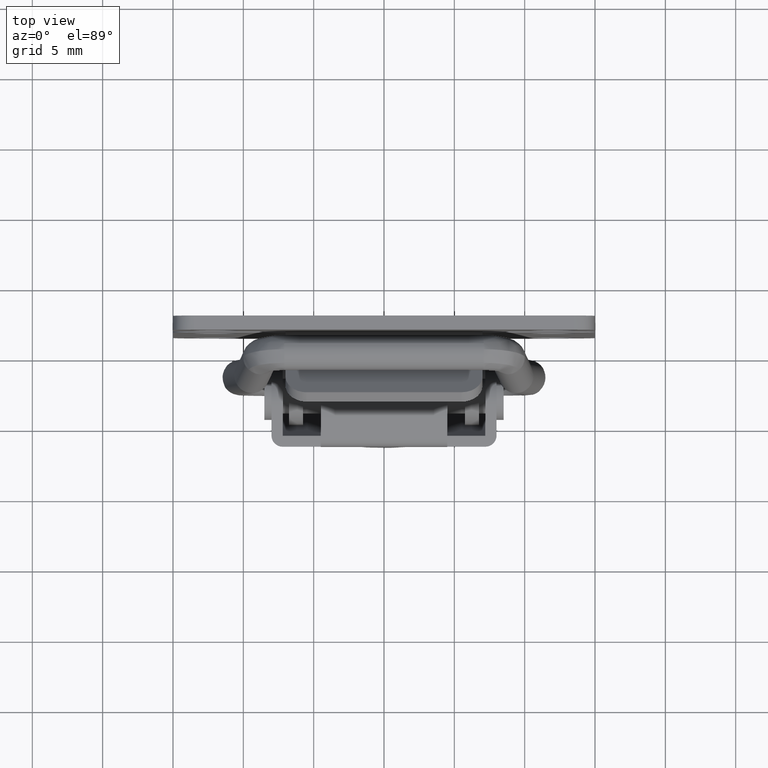
[diagram: clean part render]
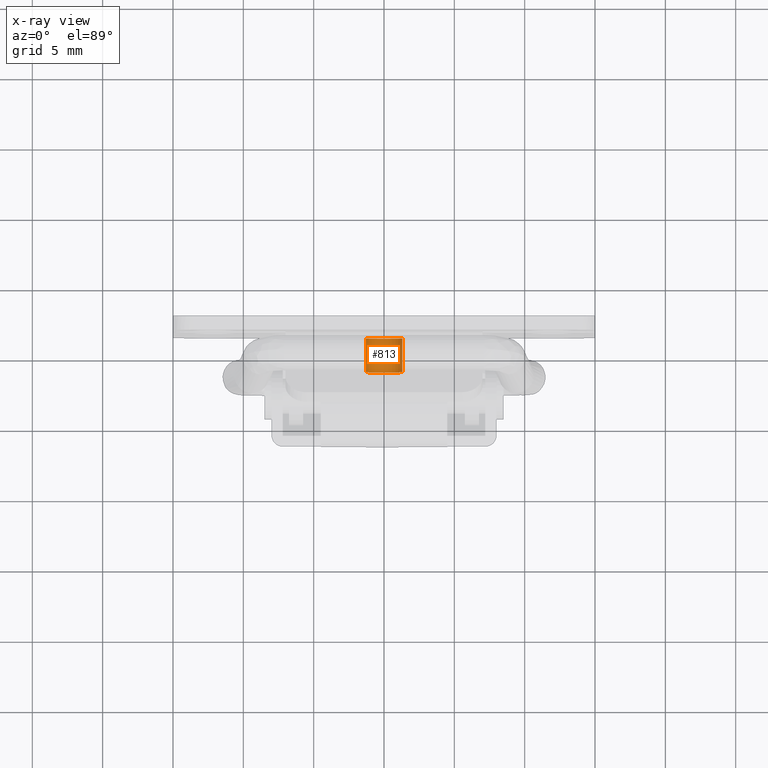
[diagram: x-ray — body ghosted, one internal face saturated and labeled with its STEP entity id]
A machine part, top view, then the same camera in x-ray: the body is ghosted and one INTERNAL B-rep face — a face not visible from any outside direction — is saturated and labeled: STEP entity #813.
In plain terms, the highlighted face is a freeform B-spline surface patch.
Its self-contained STEP definition (entity closure, byte-faithful):
#711=CARTESIAN_POINT('',(1.560000224999916,1.290912384272767,-28.596555494946223));
#712=CARTESIAN_POINT('',(1.560000224999917,1.295303900083187,-28.633500852770641));
#713=CARTESIAN_POINT('',(1.560000224999917,1.297575237948427,-28.670636898604691));
#714=CARTESIAN_POINT('',(1.560000224999917,1.376938339343741,-29.968212136553113));
#715=CARTESIAN_POINT('',(1.560000224999917,0.079363101395314,-30.047575237948429));
#716=CARTESIAN_POINT('',(1.560000224999917,-1.218212136553113,-30.126938339343745));
#717=CARTESIAN_POINT('',(1.560000224999917,-1.297575237948427,-28.829363101395309));
#718=CARTESIAN_POINT('',(-0.961509230625185,1.290912384272767,-28.596555494946223));
#719=CARTESIAN_POINT('',(-0.961509230625185,1.295303900083187,-28.633500852770641));
#720=CARTESIAN_POINT('',(-0.961509230625185,1.297575237948427,-28.670636898604691));
#721=CARTESIAN_POINT('',(-0.961509230625185,1.376938339343741,-29.968212136553113));
#722=CARTESIAN_POINT('',(-0.961509230625185,0.079363101395314,-30.047575237948429));
#723=CARTESIAN_POINT('',(-0.961509230625185,-1.218212136553113,-30.126938339343745));
#724=CARTESIAN_POINT('',(-0.961509230625185,-1.297575237948427,-28.829363101395309));
#732=(BOUNDED_SURFACE()B_SPLINE_SURFACE(2,1,((#711,#718),(#712,#719),(#713,#720),(#714,#721),(#715,#722),(#716,#723),(#717,#724)),.UNSPECIFIED.,.F.,.F.,.U.)B_SPLINE_SURFACE_WITH_KNOTS((3,2,2,3),(2,2),(3.078760800517997,3.141592653589793,4.712388980384690,6.283185307179586),(0.0,2.521509455625101),.UNSPECIFIED.)GEOMETRIC_REPRESENTATION_ITEM()RATIONAL_B_SPLINE_SURFACE(((0.977505800795127,0.977505800795127),(0.988284271247462,0.988284271247462),(1.0,1.0),(0.707106781186548,0.707106781186548),(1.0,1.0),(0.707106781186548,0.707106781186548),(1.0,1.0)))REPRESENTATION_ITEM('')SURFACE());
#733=CARTESIAN_POINT('',(1.499999999999914,1.290912384265342,-28.596555494883749));
#734=VERTEX_POINT('',#733);
#735=CARTESIAN_POINT('',(1.499999999999914,0.0,-30.050000000000001));
#736=VERTEX_POINT('',#735);
#737=CARTESIAN_POINT('',(1.499999999999915,1.290912384265342,-28.596555494883752));
#738=CARTESIAN_POINT('',(1.499999999999913,1.300000000000000,-28.673008644389398));
#739=CARTESIAN_POINT('',(1.499999999999914,1.300000000000000,-28.750000000000000));
#740=CARTESIAN_POINT('',(1.499999999999913,1.300000000000000,-30.049999999999990));
#741=CARTESIAN_POINT('',(1.499999999999914,0.0,-30.050000000000001));
#749=(BOUNDED_CURVE()B_SPLINE_CURVE(2,(#737,#738,#739,#740,#741),.UNSPECIFIED.,.F.,.U.)B_SPLINE_CURVE_WITH_KNOTS((3,2,3),(0.229562473499290,0.250000000000000,0.500000000000000),.UNSPECIFIED.)CURVE()GEOMETRIC_REPRESENTATION_ITEM()RATIONAL_B_SPLINE_CURVE((0.956026754155830,0.976055948314487,1.0,0.707106781186548,1.0))REPRESENTATION_ITEM(''));
#750=EDGE_CURVE('',#734,#736,#749,.T.);
#751=ORIENTED_EDGE('',*,*,#750,.T.);
#752=CARTESIAN_POINT('',(1.499999999999914,-1.297575237938664,-28.829363101554939));
#753=VERTEX_POINT('',#752);
#754=CARTESIAN_POINT('',(1.499999999999914,0.0,-30.050000000000001));
#755=CARTESIAN_POINT('',(1.499999999999913,-1.222917886675951,-30.049999999999997));
#756=CARTESIAN_POINT('',(1.499999999999914,-1.297575237938664,-28.829363101554936));
#764=(BOUNDED_CURVE()B_SPLINE_CURVE(2,(#754,#755,#756),.UNSPECIFIED.,.F.,.U.)B_SPLINE_CURVE_WITH_KNOTS((3,3),(0.500000000000000,0.739332962199514),.UNSPECIFIED.)CURVE()GEOMETRIC_REPRESENTATION_ITEM()RATIONAL_B_SPLINE_CURVE((1.0,0.719603993332904,0.976072041582215))REPRESENTATION_ITEM(''));
#765=EDGE_CURVE('',#736,#753,#764,.T.);
#766=ORIENTED_EDGE('',*,*,#765,.T.);
#767=CARTESIAN_POINT('',(-0.900009000000182,-1.297575237938664,-28.829363101554939));
#768=VERTEX_POINT('',#767);
#769=CARTESIAN_POINT('',(1.499999999999914,-1.297575237938664,-28.829363101554939));
#770=CARTESIAN_POINT('',(-0.900009000000182,-1.297575237938664,-28.829363101554939));
#771=QUASI_UNIFORM_CURVE('',1,(#769,#770),.UNSPECIFIED.,.F.,.U.);
#772=EDGE_CURVE('',#753,#768,#771,.T.);
#773=ORIENTED_EDGE('',*,*,#772,.T.);
#774=CARTESIAN_POINT('',(-0.900009000000182,0.0,-30.050000000000001));
#775=VERTEX_POINT('',#774);
#776=CARTESIAN_POINT('',(-0.900009000000182,0.0,-30.050000000000001));
#777=CARTESIAN_POINT('',(-0.900009000000182,-1.222917886675967,-30.049999999999994));
#778=CARTESIAN_POINT('',(-0.900009000000182,-1.297575237938664,-28.829363101554936));
#786=(BOUNDED_CURVE()B_SPLINE_CURVE(2,(#776,#777,#778),.UNSPECIFIED.,.F.,.U.)B_SPLINE_CURVE_WITH_KNOTS((3,3),(0.500000000000000,0.739332962199517),.UNSPECIFIED.)CURVE()GEOMETRIC_REPRESENTATION_ITEM()RATIONAL_B_SPLINE_CURVE((1.0,0.719603993332901,0.976072041582220))REPRESENTATION_ITEM(''));
#787=EDGE_CURVE('',#775,#768,#786,.T.);
#788=ORIENTED_EDGE('',*,*,#787,.F.);
#789=CARTESIAN_POINT('',(-0.900009000000182,1.290912384265342,-28.596555494883749));
#790=VERTEX_POINT('',#789);
#791=CARTESIAN_POINT('',(-0.900009000000182,1.290912384265342,-28.596555494883756));
#792=CARTESIAN_POINT('',(-0.900009000000182,1.300000000000000,-28.673008644389391));
#793=CARTESIAN_POINT('',(-0.900009000000182,1.300000000000000,-28.750000000000000));
#794=CARTESIAN_POINT('',(-0.900009000000182,1.300000000000000,-30.049999999999990));
#795=CARTESIAN_POINT('',(-0.900009000000182,0.0,-30.050000000000001));
#803=(BOUNDED_CURVE()B_SPLINE_CURVE(2,(#791,#792,#793,#794,#795),.UNSPECIFIED.,.F.,.U.)B_SPLINE_CURVE_WITH_KNOTS((3,2,3),(0.229562473499290,0.250000000000000,0.500000000000000),.UNSPECIFIED.)CURVE()GEOMETRIC_REPRESENTATION_ITEM()RATIONAL_B_SPLINE_CURVE((0.956026754155830,0.976055948314487,1.0,0.707106781186548,1.0))REPRESENTATION_ITEM(''));
#804=EDGE_CURVE('',#790,#775,#803,.T.);
#805=ORIENTED_EDGE('',*,*,#804,.F.);
#806=CARTESIAN_POINT('',(1.499999999999914,1.290912384265342,-28.596555494883749));
#807=CARTESIAN_POINT('',(-0.900009000000182,1.290912384265342,-28.596555494883749));
#808=QUASI_UNIFORM_CURVE('',1,(#806,#807),.UNSPECIFIED.,.F.,.U.);
#809=EDGE_CURVE('',#734,#790,#808,.T.);
#810=ORIENTED_EDGE('',*,*,#809,.F.);
#811=EDGE_LOOP('',(#751,#766,#773,#788,#805,#810));
#812=FACE_OUTER_BOUND('',#811,.T.);
#813=ADVANCED_FACE('',(#812),#732,.T.);